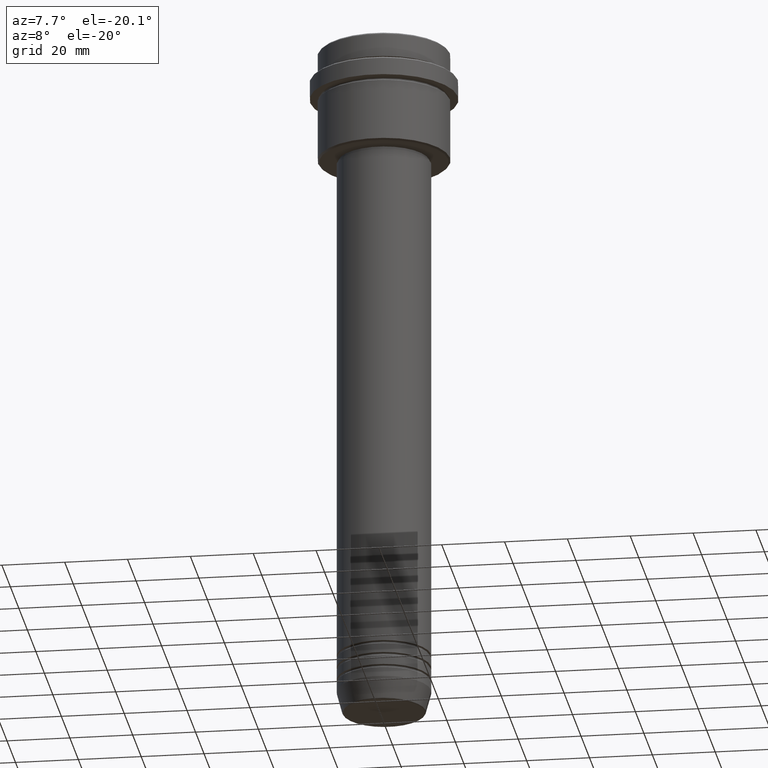
[diagram: clean part render]
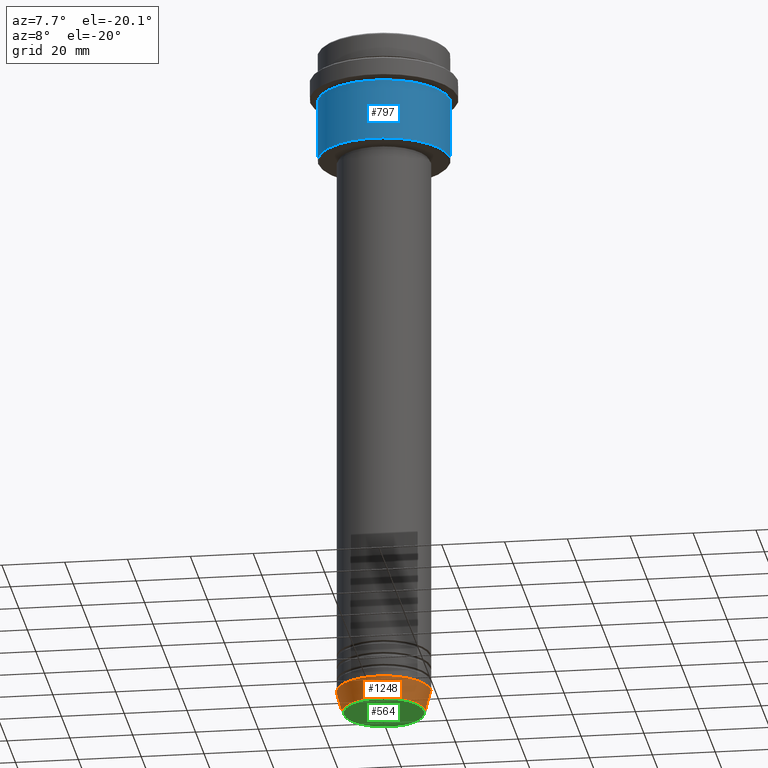
[diagram: same view with three faces highlighted in distinct colors, each labeled with its STEP entity id]
A machine part, auxiliary view with three faces highlighted in distinct colors.
Their STEP definitions:

[orange] entity #1248 — the highlighted conical surface has half-angle 15 deg.
#54 = DIRECTION ( 'NONE',  ( -0.000000000000000000, -0.000000000000000000, 1.000000000000000000 ) ) ;
#68 = DIRECTION ( 'NONE',  ( 1.000000000000000000, 0.000000000000000000, 0.000000000000000000 ) ) ;
#85 = DIRECTION ( 'NONE',  ( -0.000000000000000000, -0.000000000000000000, 1.000000000000000000 ) ) ;
#99 = EDGE_CURVE ( 'NONE', #767, #392, #994, .T. ) ;
#102 = CARTESIAN_POINT ( 'NONE',  ( -15.00000000000000000, 1.836970198721029589E-15, -214.0000000000000000 ) ) ;
#221 = CARTESIAN_POINT ( 'NONE',  ( 0.000000000000000000, 0.000000000000000000, -220.6294095225512422 ) ) ;
#247 = EDGE_CURVE ( 'NONE', #392, #407, #1395, .T. ) ;
#319 = CARTESIAN_POINT ( 'NONE',  ( -15.00000000000000000, 1.836970198721029589E-15, -214.0000000000000000 ) ) ;
#392 = VERTEX_POINT ( 'NONE', #1185 ) ;
#397 = CARTESIAN_POINT ( 'NONE',  ( 15.00000000000000000, 0.000000000000000000, -214.0000000000000000 ) ) ;
#407 = VERTEX_POINT ( 'NONE', #1216 ) ;
#416 = ORIENTED_EDGE ( 'NONE', *, *, #247, .T. ) ;
#434 = ORIENTED_EDGE ( 'NONE', *, *, #682, .F. ) ;
#536 = DIRECTION ( 'NONE',  ( 1.000000000000000000, 0.000000000000000000, 0.000000000000000000 ) ) ;
#547 = CARTESIAN_POINT ( 'NONE',  ( -13.22365507213718772, 1.728200442216588189E-15, -220.6294095225512422 ) ) ;
#592 = VECTOR ( 'NONE', #626, 1000.000000000000000 ) ;
#616 = AXIS2_PLACEMENT_3D ( 'NONE', #1145, #54, #68 ) ;
#626 = DIRECTION ( 'NONE',  ( -0.2588190451025213501, 3.169619151431772337E-17, 0.9659258262890680902 ) ) ;
#634 = LINE ( 'NONE', #102, #592 ) ;
#655 = DIRECTION ( 'NONE',  ( -0.000000000000000000, -0.000000000000000000, 1.000000000000000000 ) ) ;
#669 = VECTOR ( 'NONE', #1287, 1000.000000000000000 ) ;
#682 = EDGE_CURVE ( 'NONE', #859, #407, #1343, .T. ) ;
#761 = CARTESIAN_POINT ( 'NONE',  ( 0.000000000000000000, 0.000000000000000000, -214.0000000000000000 ) ) ;
#767 = VERTEX_POINT ( 'NONE', #547 ) ;
#787 = EDGE_LOOP ( 'NONE', ( #1218, #931, #416, #434 ) ) ;
#791 = EDGE_CURVE ( 'NONE', #767, #859, #634, .T. ) ;
#851 = AXIS2_PLACEMENT_3D ( 'NONE', #221, #655, #1098 ) ;
#859 = VERTEX_POINT ( 'NONE', #319 ) ;
#931 = ORIENTED_EDGE ( 'NONE', *, *, #99, .T. ) ;
#975 = FACE_OUTER_BOUND ( 'NONE', #787, .T. ) ;
#994 = CIRCLE ( 'NONE', #851, 13.22365507213718772 ) ;
#1098 = DIRECTION ( 'NONE',  ( 1.000000000000000000, 0.000000000000000000, 0.000000000000000000 ) ) ;
#1106 = AXIS2_PLACEMENT_3D ( 'NONE', #761, #85, #536 ) ;
#1145 = CARTESIAN_POINT ( 'NONE',  ( 0.000000000000000000, 0.000000000000000000, -214.0000000000000000 ) ) ;
#1185 = CARTESIAN_POINT ( 'NONE',  ( 13.22365507213718772, 0.000000000000000000, -220.6294095225512422 ) ) ;
#1216 = CARTESIAN_POINT ( 'NONE',  ( 15.00000000000000000, 0.000000000000000000, -214.0000000000000000 ) ) ;
#1218 = ORIENTED_EDGE ( 'NONE', *, *, #791, .F. ) ;
#1248 = ADVANCED_FACE ( 'NONE', ( #975 ), #1344, .T. ) ;
#1287 = DIRECTION ( 'NONE',  ( 0.2588190451025213501, 0.000000000000000000, 0.9659258262890680902 ) ) ;
#1343 = CIRCLE ( 'NONE', #616, 15.00000000000000000 ) ;
#1344 = CONICAL_SURFACE ( 'NONE', #1106, 15.00000000000000000, 0.2617993877991500740 ) ;
#1395 = LINE ( 'NONE', #397, #669 ) ;

[blue] entity #797 — the highlighted cylindrical surface (partial cylindrical patch) has radius 21 mm, axis along (-0, -0, 1).
#9 = CARTESIAN_POINT ( 'NONE',  ( 0.000000000000000000, 0.000000000000000000, -35.49999999999997868 ) ) ;
#23 = DIRECTION ( 'NONE',  ( 1.000000000000000000, 0.000000000000000000, 0.000000000000000000 ) ) ;
#62 = VECTOR ( 'NONE', #1214, 1000.000000000000000 ) ;
#67 = VERTEX_POINT ( 'NONE', #582 ) ;
#88 = EDGE_CURVE ( 'NONE', #67, #662, #426, .T. ) ;
#106 = CYLINDRICAL_SURFACE ( 'NONE', #485, 21.00000000000000000 ) ;
#415 = DIRECTION ( 'NONE',  ( 1.000000000000000000, 0.000000000000000000, 0.000000000000000000 ) ) ;
#426 = LINE ( 'NONE', #1328, #62 ) ;
#444 = DIRECTION ( 'NONE',  ( -0.000000000000000000, -0.000000000000000000, 1.000000000000000000 ) ) ;
#485 = AXIS2_PLACEMENT_3D ( 'NONE', #758, #868, #415 ) ;
#517 = ORIENTED_EDGE ( 'NONE', *, *, #88, .T. ) ;
#530 = AXIS2_PLACEMENT_3D ( 'NONE', #1352, #1232, #23 ) ;
#572 = CARTESIAN_POINT ( 'NONE',  ( -21.00000000000000000, 2.571758278209441661E-15, -16.00000000000000355 ) ) ;
#582 = CARTESIAN_POINT ( 'NONE',  ( 21.00000000000000000, 0.000000000000000000, -35.49999999999997868 ) ) ;
#589 = CARTESIAN_POINT ( 'NONE',  ( 21.00000000000000000, 0.000000000000000000, -16.00000000000000355 ) ) ;
#647 = CARTESIAN_POINT ( 'NONE',  ( -21.00000000000000000, 2.571758278209441661E-15, 0.000000000000000000 ) ) ;
#653 = LINE ( 'NONE', #647, #992 ) ;
#662 = VERTEX_POINT ( 'NONE', #589 ) ;
#681 = CARTESIAN_POINT ( 'NONE',  ( -21.00000000000000000, 2.571758278209441661E-15, -35.49999999999997868 ) ) ;
#758 = CARTESIAN_POINT ( 'NONE',  ( 0.000000000000000000, 0.000000000000000000, 0.000000000000000000 ) ) ;
#771 = DIRECTION ( 'NONE',  ( -1.000000000000000000, 0.000000000000000000, 0.000000000000000000 ) ) ;
#797 = ADVANCED_FACE ( 'NONE', ( #980 ), #106, .T. ) ;
#868 = DIRECTION ( 'NONE',  ( -0.000000000000000000, -0.000000000000000000, 1.000000000000000000 ) ) ;
#920 = CIRCLE ( 'NONE', #530, 21.00000000000000000 ) ;
#942 = AXIS2_PLACEMENT_3D ( 'NONE', #9, #1091, #771 ) ;
#980 = FACE_OUTER_BOUND ( 'NONE', #1139, .T. ) ;
#988 = CIRCLE ( 'NONE', #942, 21.00000000000000000 ) ;
#992 = VECTOR ( 'NONE', #444, 1000.000000000000000 ) ;
#996 = EDGE_CURVE ( 'NONE', #1008, #662, #920, .T. ) ;
#1008 = VERTEX_POINT ( 'NONE', #572 ) ;
#1085 = ORIENTED_EDGE ( 'NONE', *, *, #1338, .T. ) ;
#1091 = DIRECTION ( 'NONE',  ( -0.000000000000000000, -0.000000000000000000, 1.000000000000000000 ) ) ;
#1139 = EDGE_LOOP ( 'NONE', ( #1330, #1085, #517, #1399 ) ) ;
#1214 = DIRECTION ( 'NONE',  ( -0.000000000000000000, -0.000000000000000000, 1.000000000000000000 ) ) ;
#1232 = DIRECTION ( 'NONE',  ( -0.000000000000000000, -0.000000000000000000, 1.000000000000000000 ) ) ;
#1321 = EDGE_CURVE ( 'NONE', #1416, #1008, #653, .T. ) ;
#1328 = CARTESIAN_POINT ( 'NONE',  ( 21.00000000000000000, 0.000000000000000000, 0.000000000000000000 ) ) ;
#1330 = ORIENTED_EDGE ( 'NONE', *, *, #1321, .F. ) ;
#1338 = EDGE_CURVE ( 'NONE', #1416, #67, #988, .T. ) ;
#1352 = CARTESIAN_POINT ( 'NONE',  ( 0.000000000000000000, 0.000000000000000000, -16.00000000000000355 ) ) ;
#1399 = ORIENTED_EDGE ( 'NONE', *, *, #996, .F. ) ;
#1416 = VERTEX_POINT ( 'NONE', #681 ) ;

[green] entity #564 — the highlighted planar face has unit normal (0, -0, 1).
#5 = DIRECTION ( 'NONE',  ( 1.000000000000000000, 0.000000000000000000, 0.000000000000000000 ) ) ;
#48 = DIRECTION ( 'NONE',  ( 0.000000000000000000, 0.000000000000000000, -1.000000000000000000 ) ) ;
#278 = FACE_OUTER_BOUND ( 'NONE', #551, .T. ) ;
#315 = CARTESIAN_POINT ( 'NONE',  ( 0.000000000000000000, 0.000000000000000000, -221.0000000000000000 ) ) ;
#320 = EDGE_CURVE ( 'NONE', #1004, #376, #1337, .T. ) ;
#348 = CARTESIAN_POINT ( 'NONE',  ( 12.74069215899265828, 0.000000000000000000, -221.0000000000000000 ) ) ;
#370 = PLANE ( 'NONE',  #1191 ) ;
#376 = VERTEX_POINT ( 'NONE', #348 ) ;
#465 = DIRECTION ( 'NONE',  ( 1.000000000000000000, 0.000000000000000000, 0.000000000000000000 ) ) ;
#466 = CARTESIAN_POINT ( 'NONE',  ( 0.000000000000000000, 0.000000000000000000, -221.0000000000000000 ) ) ;
#551 = EDGE_LOOP ( 'NONE', ( #1386, #710 ) ) ;
#564 = ADVANCED_FACE ( 'NONE', ( #278 ), #370, .F. ) ;
#664 = CARTESIAN_POINT ( 'NONE',  ( -12.74069215899265828, 1.589857736427681035E-15, -221.0000000000000000 ) ) ;
#710 = ORIENTED_EDGE ( 'NONE', *, *, #320, .T. ) ;
#740 = DIRECTION ( 'NONE',  ( 0.000000000000000000, 0.000000000000000000, -1.000000000000000000 ) ) ;
#784 = CIRCLE ( 'NONE', #897, 12.74069215899265828 ) ;
#830 = EDGE_CURVE ( 'NONE', #376, #1004, #784, .T. ) ;
#897 = AXIS2_PLACEMENT_3D ( 'NONE', #315, #740, #5 ) ;
#1004 = VERTEX_POINT ( 'NONE', #664 ) ;
#1028 = AXIS2_PLACEMENT_3D ( 'NONE', #1233, #48, #465 ) ;
#1031 = DIRECTION ( 'NONE',  ( 0.000000000000000000, -0.000000000000000000, 1.000000000000000000 ) ) ;
#1136 = DIRECTION ( 'NONE',  ( 1.000000000000000000, 0.000000000000000000, 0.000000000000000000 ) ) ;
#1191 = AXIS2_PLACEMENT_3D ( 'NONE', #466, #1031, #1136 ) ;
#1233 = CARTESIAN_POINT ( 'NONE',  ( 0.000000000000000000, 0.000000000000000000, -221.0000000000000000 ) ) ;
#1337 = CIRCLE ( 'NONE', #1028, 12.74069215899265828 ) ;
#1386 = ORIENTED_EDGE ( 'NONE', *, *, #830, .T. ) ;